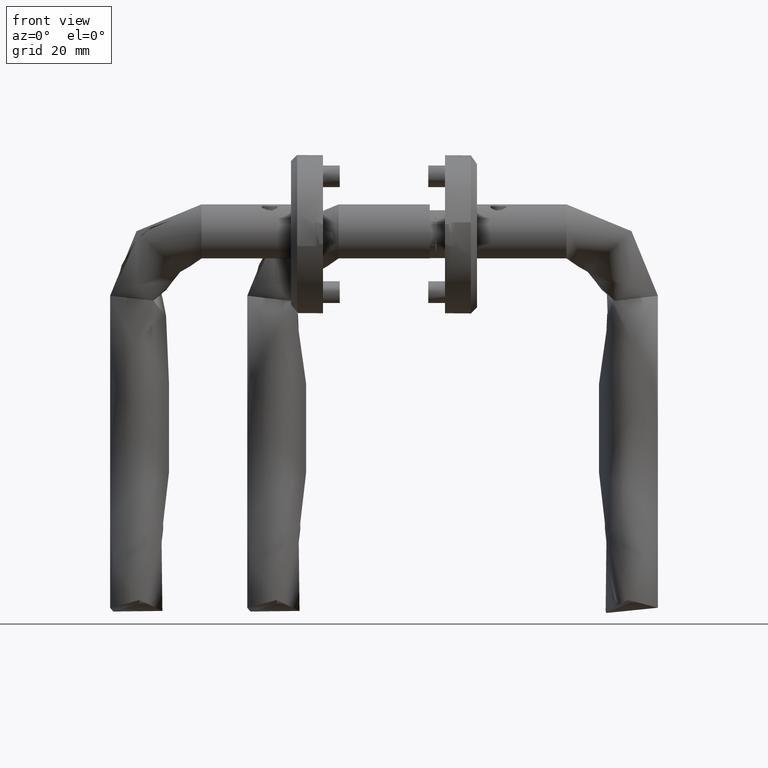
[diagram: clean part render]
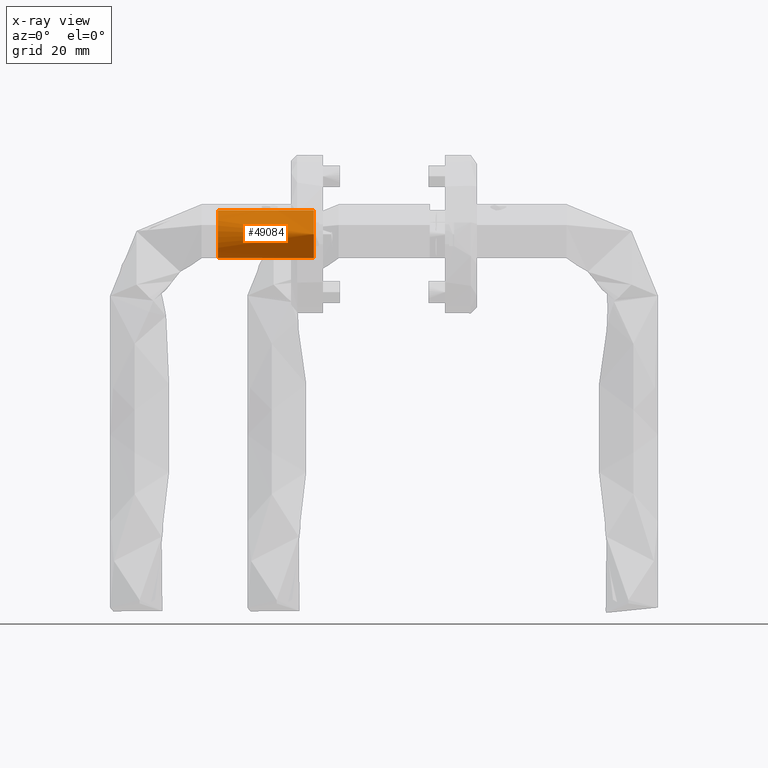
[diagram: x-ray — body ghosted, one internal face saturated and labeled with its STEP entity id]
A machine part, front view, then the same camera in x-ray: the body is ghosted and one INTERNAL B-rep face — a face not visible from any outside direction — is saturated and labeled: STEP entity #49084.
In plain terms, the highlighted cylindrical surface (bore or boss wall) has radius 7.85 mm, axis along (1, -0, 0).
Its self-contained STEP definition (entity closure, byte-faithful):
#577 = CARTESIAN_POINT ( 'NONE',  ( -1.955152015191743200, -0.3275476067856502600, 5.016033858577817000 ) ) ;
#819 = CARTESIAN_POINT ( 'NONE',  ( -1.990504578532325000, -0.8108120482076909300, 9.870512575395313300 ) ) ;
#1103 = EDGE_CURVE ( 'NONE', #58536, #58536, #3979, .T. ) ;
#1568 = CARTESIAN_POINT ( 'NONE',  ( -2.332127616856068300, -2.419613174249179500, 8.150025874492422800 ) ) ;
#2430 = CYLINDRICAL_SURFACE ( 'NONE', #61855, 7.849999999999997900 ) ;
#3979 = CIRCLE ( 'NONE', #17559, 7.849999999999999600 ) ;
#4179 = DIRECTION ( 'NONE',  ( -1.972152263052526900E-031, -3.889170968374258800E-034, -1.000000000000000000 ) ) ;
#6114 = CARTESIAN_POINT ( 'NONE',  ( -2.204687313181858100, 1.997229744117846400, 9.038161069933453400 ) ) ;
#6346 = CARTESIAN_POINT ( 'NONE',  ( -2.098649725234989400, -1.526616055230514600, 5.513571094196458400 ) ) ;
#6827 = CARTESIAN_POINT ( 'NONE',  ( -2.049868104465800500, -1.255727908668481200, 9.667869604537886000 ) ) ;
#7326 = CARTESIAN_POINT ( 'NONE',  ( -1.950021670309643400, 0.1649011203877659400, 5.000068044777509400 ) ) ;
#11884 = CARTESIAN_POINT ( 'NONE',  ( -2.353210535344120800, 2.483744156676579400, 7.828896883903584400 ) ) ;
#12025 = CIRCLE ( 'NONE', #49432, 7.849999999999999600 ) ;
#12131 = CARTESIAN_POINT ( 'NONE',  ( -1.990259856097238900, -0.8084216882191680400, 5.128687615706724900 ) ) ;
#13924 = ORIENTED_EDGE ( 'NONE', *, *, #57754, .T. ) ;
#14106 = FACE_OUTER_BOUND ( 'NONE', #74060, .T. ) ;
#15452 = EDGE_CURVE ( 'NONE', #64818, #64818, #12025, .T. ) ;
#15632 = DIRECTION ( 'NONE',  ( 1.972152263052526900E-031, 3.889170968374258800E-034, 1.000000000000000000 ) ) ;
#16666 = CARTESIAN_POINT ( 'NONE',  ( -2.027718302237830400, 1.112353659052461200, 9.744878191350071700 ) ) ;
#16923 = CARTESIAN_POINT ( 'NONE',  ( -1.949999999999996800, 0.1663271035317407400, 9.999999999999998200 ) ) ;
#17559 = AXIS2_PLACEMENT_3D ( 'NONE', #65632, #71409, #65886 ) ;
#17671 = CARTESIAN_POINT ( 'NONE',  ( -2.358691909127925300, 2.499886779604183500, 7.665969627596670200 ) ) ;
#17909 = CARTESIAN_POINT ( 'NONE',  ( -1.949999999999997100, -0.1663271035317407700, 10.00000000000000200 ) ) ;
#18156 = CARTESIAN_POINT ( 'NONE',  ( -1.955297538070218400, 0.3307107556887428600, 5.016492887881386600 ) ) ;
#18657 = CARTESIAN_POINT ( 'NONE',  ( -2.049972585820545300, -1.256354931608743900, 5.332506363625991100 ) ) ;
#20145 = ORIENTED_EDGE ( 'NONE', *, *, #15452, .F. ) ;
#23442 = CARTESIAN_POINT ( 'NONE',  ( -2.098814674166304100, 1.527437675453568100, 5.514210146021983200 ) ) ;
#24395 = B_SPLINE_CURVE_WITH_KNOTS ( 'NONE', 3,
 ( #74135, #16923, #40465, #57529, #51518, #16666, #45992, #39475, #63317, #6114, #57034, #51018, #46242, #11884, #17671, #39977, #52018, #68081, #68831, #56787, #34441, #51767, #33692, #35441, #23442, #41435, #70063, #35187, #47229, #18156, #7326, #70309, #577, #52754, #12131, #64540, #18657, #6346, #35685, #46492, #30170, #64290, #58748, #63568, #57776, #69562, #24420, #29676, #35930, #1568, #40946, #34955, #41683, #29200, #46734, #6827, #29443, #819, #58257, #69321, #17909, #40705 ),
 .UNSPECIFIED., .T., .F.,
 ( 4, 2, 2, 2, 2, 2, 2, 2, 2, 2, 2, 2, 2, 2, 2, 2, 2, 2, 2, 2, 2, 2, 2, 2, 2, 2, 2, 2, 2, 2, 4 ),
 ( 0.0000000000000000000, 0.0004916676346564887100, 0.0009833352693129772000, 0.001475002903969466100, 0.001966670538625954800, 0.002950005807938932200, 0.003441673442595423500, 0.003933341077251914900, 0.004425008711908405700, 0.004916676346564897500, 0.005408343981221388300, 0.005900011615877880100, 0.006391679250534371000, 0.006883346885190862700, 0.007375014519847353600, 0.007866682154503845300, 0.008358349789160337100, 0.008850017423816830500, 0.009341685058473322300, 0.009833352693129814000, 0.01032502032778630600, 0.01081668796244279900, 0.01130835559709929100, 0.01180002323175578300, 0.01229169086641227400, 0.01278335850106876800, 0.01376669377038174400, 0.01425836140503823100, 0.01475002903969471900, 0.01524169667435120600, 0.01573336430900769400 ),
 .UNSPECIFIED. ) ;
#24420 = CARTESIAN_POINT ( 'NONE',  ( -2.358719915615798100, -2.499970141168991400, 7.334772854630328400 ) ) ;
#29200 = CARTESIAN_POINT ( 'NONE',  ( -2.125309370236194700, -1.653917895037600300, 9.381705236244965100 ) ) ;
#29364 = FACE_OUTER_BOUND ( 'NONE', #34731, .T. ) ;
#29443 = CARTESIAN_POINT ( 'NONE',  ( -2.027775020038262300, -1.112723584859275100, 9.744680884073282800 ) ) ;
#29676 = CARTESIAN_POINT ( 'NONE',  ( -2.358739951104626500, -2.500029776963275100, 7.664322337496990700 ) ) ;
#30170 = CARTESIAN_POINT ( 'NONE',  ( -2.205016718890033800, -1.986824642136730800, 5.973967072932333100 ) ) ;
#30530 = CARTESIAN_POINT ( 'NONE',  ( -1.950000000000002200, -3.851859888774471700E-031, -7.000000000000020400 ) ) ;
#31151 = FACE_BOUND ( 'NONE', #31748, .T. ) ;
#31748 = EDGE_LOOP ( 'NONE', ( #13924 ) ) ;
#33692 = CARTESIAN_POINT ( 'NONE',  ( -2.178237088088305700, 1.882872320206645300, 5.847327085301093200 ) ) ;
#34441 = CARTESIAN_POINT ( 'NONE',  ( -2.254673965305798300, 2.167789861347158900, 6.244209587272367300 ) ) ;
#34731 = EDGE_LOOP ( 'NONE', ( #41930 ) ) ;
#34955 = CARTESIAN_POINT ( 'NONE',  ( -2.258555993685988500, -2.183181670281117500, 8.760974231041247500 ) ) ;
#35187 = CARTESIAN_POINT ( 'NONE',  ( -1.990421415154604700, 0.8099368660496052400, 5.129219729421327800 ) ) ;
#35441 = CARTESIAN_POINT ( 'NONE',  ( -2.124991034199241300, 1.652487650323280600, 5.616965081919937900 ) ) ;
#35685 = CARTESIAN_POINT ( 'NONE',  ( -2.124852006187540900, -1.651858893999304600, 5.616388023070403100 ) ) ;
#35930 = CARTESIAN_POINT ( 'NONE',  ( -2.353272379704625500, -2.483927050670780000, 7.827365174470019200 ) ) ;
#38941 = CARTESIAN_POINT ( 'NONE',  ( -9.800000000000000700, 0.0000000000000000000, 24.50000000000003900 ) ) ;
#39475 = CARTESIAN_POINT ( 'NONE',  ( -2.098619396321421700, 1.526494297239596100, 9.486554311812355400 ) ) ;
#39977 = CARTESIAN_POINT ( 'NONE',  ( -2.358767590165173000, 2.500112044877544500, 7.337458955391055900 ) ) ;
#40465 = CARTESIAN_POINT ( 'NONE',  ( -1.955276754880813900, 0.3296665543572500600, 9.983568383296789900 ) ) ;
#40705 = CARTESIAN_POINT ( 'NONE',  ( -1.949999999999996800, -3.117081245895825200E-016, 10.00000000000000000 ) ) ;
#40946 = CARTESIAN_POINT ( 'NONE',  ( -2.316337309387356500, -2.370987707599417700, 8.309321842416745000 ) ) ;
#41435 = CARTESIAN_POINT ( 'NONE',  ( -2.050145285200961200, 1.257407322524556300, 5.333123441028848600 ) ) ;
#41683 = CARTESIAN_POINT ( 'NONE',  ( -2.204762430838687900, -1.997535714934926700, 9.037818931509368900 ) ) ;
#41930 = ORIENTED_EDGE ( 'NONE', *, *, #1103, .T. ) ;
#45992 = CARTESIAN_POINT ( 'NONE',  ( -2.049835540205384300, 1.255547246565432300, 9.667990771411915300 ) ) ;
#46242 = CARTESIAN_POINT ( 'NONE',  ( -2.331953651937851600, 2.419078772989926100, 8.152085949960657300 ) ) ;
#46492 = CARTESIAN_POINT ( 'NONE',  ( -2.178193592102578800, -1.882711239978614300, 5.847114561690550400 ) ) ;
#46734 = CARTESIAN_POINT ( 'NONE',  ( -2.098586111927949200, -1.526309635492221900, 9.486678156997696100 ) ) ;
#47229 = CARTESIAN_POINT ( 'NONE',  ( -1.975611367669903200, 0.6539639519109026200, 5.081424318018347800 ) ) ;
#49084 = ADVANCED_FACE ( 'NONE', ( #31151, #29364, #14106 ), #2430, .T. ) ;
#49432 = AXIS2_PLACEMENT_3D ( 'NONE', #38941, #15632, #73598 ) ;
#50327 = DIRECTION ( 'NONE',  ( -1.000000000000000000, 0.0000000000000000000, 0.0000000000000000000 ) ) ;
#51018 = CARTESIAN_POINT ( 'NONE',  ( -2.316176063174193000, 2.370476067375542500, 8.310737631373983800 ) ) ;
#51518 = CARTESIAN_POINT ( 'NONE',  ( -1.990422550186744500, 0.8100577186500034200, 9.870783678293346200 ) ) ;
#51767 = CARTESIAN_POINT ( 'NONE',  ( -2.205139297483599500, 1.987296848023906200, 5.974557873437207800 ) ) ;
#52018 = CARTESIAN_POINT ( 'NONE',  ( -2.353169705818935100, 2.483619098085724000, 7.170577947304400000 ) ) ;
#52301 = VERTEX_POINT ( 'NONE', #71912 ) ;
#52754 = CARTESIAN_POINT ( 'NONE',  ( -1.975438278726479300, -0.6520438707957750800, 5.080865027122197100 ) ) ;
#53108 = CARTESIAN_POINT ( 'NONE',  ( -1.950000000000002200, 0.0000000000000000000, 24.50000000000003900 ) ) ;
#56787 = CARTESIAN_POINT ( 'NONE',  ( -2.277701288959407900, 2.245415541473274200, 6.388600133605320000 ) ) ;
#57034 = CARTESIAN_POINT ( 'NONE',  ( -2.258489346735788100, 2.182940008413204700, 8.761182814414105700 ) ) ;
#57529 = CARTESIAN_POINT ( 'NONE',  ( -1.975360598605850900, 0.6506773914354808700, 9.919382335193825300 ) ) ;
#57754 = EDGE_CURVE ( 'NONE', #52301, #52301, #24395, .T. ) ;
#57776 = CARTESIAN_POINT ( 'NONE',  ( -2.331899841439351500, -2.418910466870164600, 6.847610447314208300 ) ) ;
#58257 = CARTESIAN_POINT ( 'NONE',  ( -1.975401069011180300, -0.6512087187244562900, 9.919252164818814800 ) ) ;
#58536 = VERTEX_POINT ( 'NONE', #30530 ) ;
#58748 = CARTESIAN_POINT ( 'NONE',  ( -2.277493905325217700, -2.244724847799441500, 6.387186893733570500 ) ) ;
#61855 = AXIS2_PLACEMENT_3D ( 'NONE', #66901, #4179, #50327 ) ;
#63317 = CARTESIAN_POINT ( 'NONE',  ( -2.125298850725605400, 1.653862943130006700, 9.381742250496417400 ) ) ;
#63568 = CARTESIAN_POINT ( 'NONE',  ( -2.316444650212627000, -2.371347067262873600, 6.691386533385486500 ) ) ;
#64290 = CARTESIAN_POINT ( 'NONE',  ( -2.254496921815408900, -2.167170158535897800, 6.243169797845409300 ) ) ;
#64540 = CARTESIAN_POINT ( 'NONE',  ( -2.027393085559543000, -1.110030853112575100, 5.254003660950454300 ) ) ;
#64818 = VERTEX_POINT ( 'NONE', #53108 ) ;
#65632 = CARTESIAN_POINT ( 'NONE',  ( -9.800000000000000700, -3.851859888774471700E-031, -7.000000000000020400 ) ) ;
#65886 = DIRECTION ( 'NONE',  ( 1.000000000000000000, 0.0000000000000000000, 0.0000000000000000000 ) ) ;
#66901 = CARTESIAN_POINT ( 'NONE',  ( -9.800000000000000700, 0.0000000000000000000, 24.50000000000003900 ) ) ;
#68081 = CARTESIAN_POINT ( 'NONE',  ( -2.332032967751786600, 2.419320908842565600, 6.849024537163266800 ) ) ;
#68831 = CARTESIAN_POINT ( 'NONE',  ( -2.316578114705569300, 2.371764267103499500, 6.692637083956154400 ) ) ;
#69321 = CARTESIAN_POINT ( 'NONE',  ( -1.955280179655499500, -0.3298365753949352700, 9.983558267054553100 ) ) ;
#69562 = CARTESIAN_POINT ( 'NONE',  ( -2.353057057999241600, -2.483281829276065900, 7.168260144729445400 ) ) ;
#70063 = CARTESIAN_POINT ( 'NONE',  ( -2.027546660310505900, 1.111073571916672900, 5.254535162568858600 ) ) ;
#70309 = CARTESIAN_POINT ( 'NONE',  ( -1.949978466111728300, -0.1628314269536482200, 4.999932383585608900 ) ) ;
#71409 = DIRECTION ( 'NONE',  ( 1.972152263052526900E-031, 3.889170968374258800E-034, 1.000000000000000000 ) ) ;
#71912 = CARTESIAN_POINT ( 'NONE',  ( -1.949999999999996800, -1.540743955509788700E-030, 9.999999999999998200 ) ) ;
#73598 = DIRECTION ( 'NONE',  ( 1.000000000000000000, 0.0000000000000000000, 0.0000000000000000000 ) ) ;
#74060 = EDGE_LOOP ( 'NONE', ( #20145 ) ) ;
#74135 = CARTESIAN_POINT ( 'NONE',  ( -1.949999999999996800, -3.117081245895825200E-016, 10.00000000000000000 ) ) ;